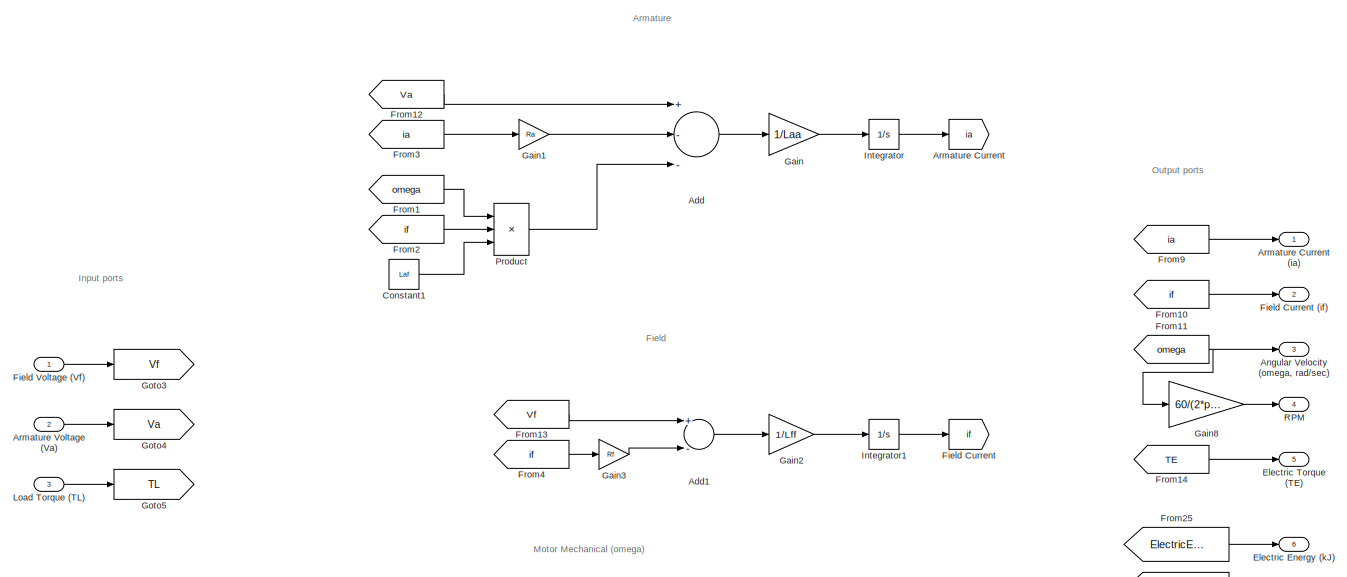
[diagram: root canvas - part 1/4, top center region]
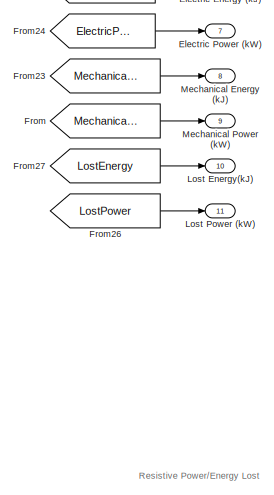
[diagram: root canvas - part 2/4, middle right region]
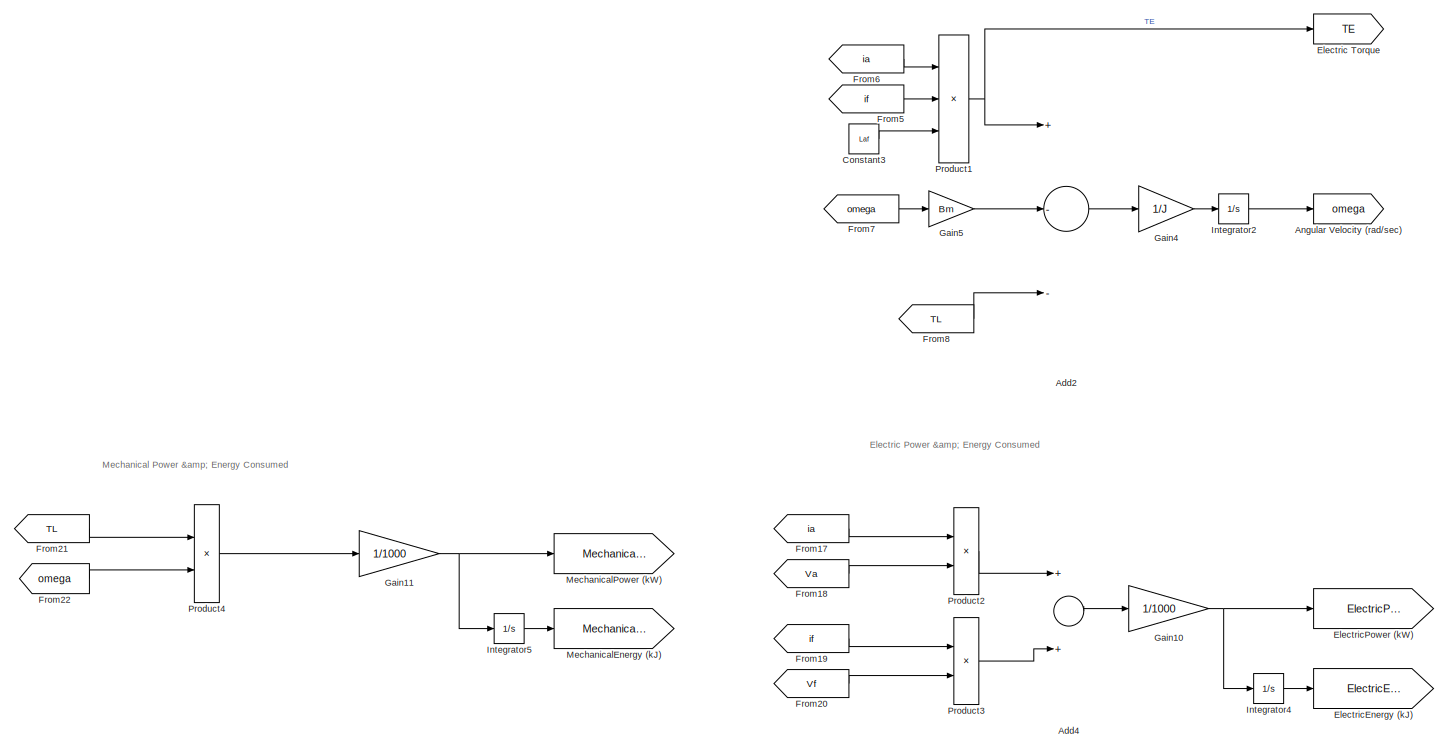
[diagram: root canvas - part 3/4, bottom left region]
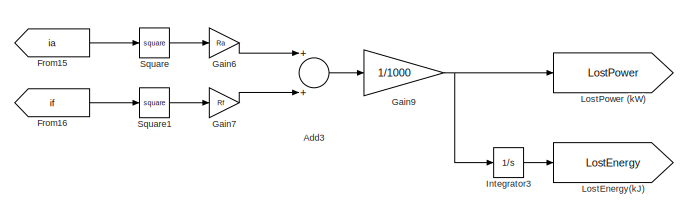
[diagram: root canvas - part 4/4, bottom right region]
MODEL slx_8e0ccdffc390
KIND model
CONFIG AbsTol = auto
CONFIG EnableMultiTasking = off
CONFIG FixedStep = auto
CONFIG InitFcn = run MotorParameter_Initialize
CONFIG MaxStep = auto
CONFIG MinStep = auto
CONFIG RelTol = 1e-3
CONFIG SampleTimeConstraint = Unconstrained
CONFIG Solver = VariableStepAuto
CONFIG SolverName = VariableStepAuto
CONFIG StartTime = 0.0
CONFIG StopTime = 10.0
BLOCK [Sum] Add
  InputSameDT = off
  Inputs = +--
  OutDataTypeStr = Inherit: Inherit via internal rule
  Ports = [3, 1]
  SaturateOnIntegerOverflow = off
BLOCK [Sum] Add1
  InputSameDT = off
  Inputs = +-
  OutDataTypeStr = Inherit: Inherit via internal rule
  Ports = [2, 1]
  SaturateOnIntegerOverflow = off
BLOCK [Sum] Add2
  InputSameDT = off
  Inputs = +--
  OutDataTypeStr = Inherit: Inherit via internal rule
  Ports = [3, 1]
  SaturateOnIntegerOverflow = off
BLOCK [Sum] Add3
  InputSameDT = off
  OutDataTypeStr = Inherit: Inherit via internal rule
  Ports = [2, 1]
  SaturateOnIntegerOverflow = off
BLOCK [Sum] Add4
  InputSameDT = off
  OutDataTypeStr = Inherit: Inherit via internal rule
  Ports = [2, 1]
  SaturateOnIntegerOverflow = off
BLOCK [Outport] Angular Velocity (omega, rad//sec)
  IconDisplay = Port number
  Port = 3
BLOCK [Goto] Angular Velocity (rad//sec)
  GotoTag = omega
BLOCK [Goto] Armature Current
  GotoTag = ia
BLOCK [Outport] Armature Current (ia)
  IconDisplay = Port number
BLOCK [Inport] Armature Voltage (Va)
  IconDisplay = Port number
  Port = 2
BLOCK [Constant] Constant1
  Value = Laf
BLOCK [Constant] Constant3
  Value = Laf
BLOCK [Outport] Electric Energy (kJ)
  IconDisplay = Port number
  Port = 6
BLOCK [Outport] Electric Power (kW)
  IconDisplay = Port number
  Port = 7
BLOCK [Goto] Electric Torque
  GotoTag = TE
BLOCK [Outport] Electric Torque (TE)
  IconDisplay = Port number
  Port = 5
BLOCK [Goto] ElectricEnergy (kJ)
  GotoTag = ElectricEnergy
BLOCK [Goto] ElectricPower (kW)
  GotoTag = ElectricPower
BLOCK [Goto] Field Current
  GotoTag = if
BLOCK [Outport] Field Current (if)
  IconDisplay = Port number
  Port = 2
BLOCK [Inport] Field Voltage (Vf)
  IconDisplay = Port number
BLOCK [From] From
  GotoTag = MechanicalPower
BLOCK [From] From1
  GotoTag = omega
BLOCK [From] From10
  GotoTag = if
BLOCK [From] From11
  GotoTag = omega
BLOCK [From] From12
  GotoTag = Va
BLOCK [From] From13
  GotoTag = Vf
BLOCK [From] From14
  GotoTag = TE
BLOCK [From] From15
  GotoTag = ia
BLOCK [From] From16
  GotoTag = if
BLOCK [From] From17
  GotoTag = ia
BLOCK [From] From18
  GotoTag = Va
BLOCK [From] From19
  GotoTag = if
BLOCK [From] From2
  GotoTag = if
BLOCK [From] From20
  GotoTag = Vf
BLOCK [From] From21
  GotoTag = TL
BLOCK [From] From22
  GotoTag = omega
BLOCK [From] From23
  GotoTag = MechanicalEnergy
BLOCK [From] From24
  GotoTag = ElectricPower
BLOCK [From] From25
  GotoTag = ElectricEnergy
BLOCK [From] From26
  GotoTag = LostPower
BLOCK [From] From27
  GotoTag = LostEnergy
BLOCK [From] From3
  GotoTag = ia
BLOCK [From] From4
  GotoTag = if
BLOCK [From] From5
  GotoTag = if
BLOCK [From] From6
  GotoTag = ia
BLOCK [From] From7
  GotoTag = omega
BLOCK [From] From8
  GotoTag = TL
BLOCK [From] From9
  GotoTag = ia
BLOCK [Gain] Gain
  Gain = 1/Laa
  OutDataTypeStr = Inherit: Inherit via internal rule
  ParamDataTypeStr = Inherit: Inherit via internal rule
  SaturateOnIntegerOverflow = off
BLOCK [Gain] Gain1
  Gain = Ra
  OutDataTypeStr = Inherit: Inherit via internal rule
  ParamDataTypeStr = Inherit: Inherit via internal rule
  SaturateOnIntegerOverflow = off
BLOCK [Gain] Gain10
  Gain = 1/1000
  OutDataTypeStr = Inherit: Inherit via internal rule
  ParamDataTypeStr = Inherit: Inherit via internal rule
  SaturateOnIntegerOverflow = off
BLOCK [Gain] Gain11
  Gain = 1/1000
  OutDataTypeStr = Inherit: Inherit via internal rule
  ParamDataTypeStr = Inherit: Inherit via internal rule
  SaturateOnIntegerOverflow = off
BLOCK [Gain] Gain2
  Gain = 1/Lff
  OutDataTypeStr = Inherit: Inherit via internal rule
  ParamDataTypeStr = Inherit: Inherit via internal rule
  SaturateOnIntegerOverflow = off
BLOCK [Gain] Gain3
  Gain = Rf
  OutDataTypeStr = Inherit: Inherit via internal rule
  ParamDataTypeStr = Inherit: Inherit via internal rule
  SaturateOnIntegerOverflow = off
BLOCK [Gain] Gain4
  Gain = 1/J
  OutDataTypeStr = Inherit: Inherit via internal rule
  ParamDataTypeStr = Inherit: Inherit via internal rule
  SaturateOnIntegerOverflow = off
BLOCK [Gain] Gain5
  Gain = Bm
  OutDataTypeStr = Inherit: Inherit via internal rule
  ParamDataTypeStr = Inherit: Inherit via internal rule
  SaturateOnIntegerOverflow = off
BLOCK [Gain] Gain6
  Gain = Ra
  OutDataTypeStr = Inherit: Inherit via internal rule
  ParamDataTypeStr = Inherit: Inherit via internal rule
  SaturateOnIntegerOverflow = off
BLOCK [Gain] Gain7
  Gain = Rf
  OutDataTypeStr = Inherit: Inherit via internal rule
  ParamDataTypeStr = Inherit: Inherit via internal rule
  SaturateOnIntegerOverflow = off
BLOCK [Gain] Gain8
  Gain = 60/(2*pi)
  OutDataTypeStr = Inherit: Inherit via internal rule
  ParamDataTypeStr = Inherit: Inherit via internal rule
  SaturateOnIntegerOverflow = off
BLOCK [Gain] Gain9
  Gain = 1/1000
  OutDataTypeStr = Inherit: Inherit via internal rule
  ParamDataTypeStr = Inherit: Inherit via internal rule
  SaturateOnIntegerOverflow = off
BLOCK [Goto] Goto3
  GotoTag = Vf
BLOCK [Goto] Goto4
  GotoTag = Va
BLOCK [Goto] Goto5
  GotoTag = TL
BLOCK [Integrator] Integrator
  Ports = [1, 1]
BLOCK [Integrator] Integrator1
  Ports = [1, 1]
BLOCK [Integrator] Integrator2
  Ports = [1, 1]
BLOCK [Integrator] Integrator3
  Ports = [1, 1]
BLOCK [Integrator] Integrator4
  Ports = [1, 1]
BLOCK [Integrator] Integrator5
  Ports = [1, 1]
BLOCK [Inport] Load Torque (TL)
  IconDisplay = Port number
  Port = 3
BLOCK [Outport] Lost Energy(kJ)
  IconDisplay = Port number
  Port = 10
BLOCK [Outport] Lost Power (kW)
  IconDisplay = Port number
  Port = 11
BLOCK [Goto] LostEnergy(kJ)
  GotoTag = LostEnergy
BLOCK [Goto] LostPower (kW)
  GotoTag = LostPower
BLOCK [Outport] Mechanical Energy (kJ)
  IconDisplay = Port number
  Port = 8
BLOCK [Outport] Mechanical Power (kW)
  IconDisplay = Port number
  Port = 9
BLOCK [Goto] MechanicalEnergy (kJ)
  GotoTag = MechanicalEnergy
BLOCK [Goto] MechanicalPower (kW)
  GotoTag = MechanicalPower
BLOCK [Product] Product
  InputSameDT = off
  Inputs = 3
  OutDataTypeStr = Inherit: Inherit via internal rule
  Ports = [3, 1]
  RndMeth = Floor
  SaturateOnIntegerOverflow = off
BLOCK [Product] Product1
  InputSameDT = off
  Inputs = 3
  OutDataTypeStr = Inherit: Inherit via internal rule
  Ports = [3, 1]
  RndMeth = Floor
  SaturateOnIntegerOverflow = off
BLOCK [Product] Product2
  InputSameDT = off
  OutDataTypeStr = Inherit: Inherit via internal rule
  Ports = [2, 1]
  RndMeth = Floor
  SaturateOnIntegerOverflow = off
BLOCK [Product] Product3
  InputSameDT = off
  OutDataTypeStr = Inherit: Inherit via internal rule
  Ports = [2, 1]
  RndMeth = Floor
  SaturateOnIntegerOverflow = off
BLOCK [Product] Product4
  InputSameDT = off
  OutDataTypeStr = Inherit: Inherit via internal rule
  Ports = [2, 1]
  RndMeth = Floor
  SaturateOnIntegerOverflow = off
BLOCK [Outport] RPM
  IconDisplay = Port number
  Port = 4
BLOCK [Math] Square
  Operator = square
  Ports = [1, 1]
BLOCK [Math] Square1
  Operator = square
  Ports = [1, 1]
ANNOTATION (root): Armature
ANNOTATION (root): Electric Power & Energy Consumed
ANNOTATION (root): Field
ANNOTATION (root): Input ports
ANNOTATION (root): Mechanical Power & Energy Consumed
ANNOTATION (root): Motor Mechanical (omega)
ANNOTATION (root): Output ports
ANNOTATION (root): Resistive Power/Energy Lost
LINE Add1:1 -> Gain2:1
LINE Add2:1 -> Gain4:1
LINE Add3:1 -> Gain9:1
LINE Add4:1 -> Gain10:1
LINE Add:1 -> Gain:1
LINE Armature Voltage (Va):1 -> Goto4:1
LINE Constant1:1 -> Product:3
LINE Constant3:1 -> Product1:3
LINE Field Voltage (Vf):1 -> Goto3:1
LINE From10:1 -> Field Current (if):1
NET From11:1 -> Angular Velocity (omega, rad//sec):1, Gain8:1
LINE From12:1 -> Add:1
LINE From13:1 -> Add1:1
LINE From14:1 -> Electric Torque (TE):1
LINE From15:1 -> Square:1
LINE From16:1 -> Square1:1
LINE From17:1 -> Product2:1
LINE From18:1 -> Product2:2
LINE From19:1 -> Product3:1
LINE From1:1 -> Product:1
LINE From20:1 -> Product3:2
LINE From21:1 -> Product4:1
LINE From22:1 -> Product4:2
LINE From23:1 -> Mechanical Energy (kJ):1
LINE From24:1 -> Electric Power (kW):1
LINE From25:1 -> Electric Energy (kJ):1
LINE From26:1 -> Lost Power (kW):1
LINE From27:1 -> Lost Energy(kJ):1
LINE From2:1 -> Product:2
LINE From3:1 -> Gain1:1
LINE From4:1 -> Gain3:1
LINE From5:1 -> Product1:2
LINE From6:1 -> Product1:1
LINE From7:1 -> Gain5:1
LINE From8:1 -> Add2:3
LINE From9:1 -> Armature Current (ia):1
LINE From:1 -> Mechanical Power (kW):1
NET Gain10:1 -> ElectricPower (kW):1, Integrator4:1
NET Gain11:1 -> Integrator5:1, MechanicalPower (kW):1
LINE Gain1:1 -> Add:2
LINE Gain2:1 -> Integrator1:1
LINE Gain3:1 -> Add1:2
LINE Gain4:1 -> Integrator2:1
LINE Gain5:1 -> Add2:2
LINE Gain6:1 -> Add3:1
LINE Gain7:1 -> Add3:2
LINE Gain8:1 -> RPM:1
NET Gain9:1 -> Integrator3:1, LostPower (kW):1
LINE Gain:1 -> Integrator:1
LINE Integrator1:1 -> Field Current:1
LINE Integrator2:1 -> Angular Velocity (rad//sec):1
LINE Integrator3:1 -> LostEnergy(kJ):1
LINE Integrator4:1 -> ElectricEnergy (kJ):1
LINE Integrator5:1 -> MechanicalEnergy (kJ):1
LINE Integrator:1 -> Armature Current:1
LINE Load Torque (TL):1 -> Goto5:1
NET Product1:1 -> Add2:1, Electric Torque:1
LINE Product2:1 -> Add4:1
LINE Product3:1 -> Add4:2
LINE Product4:1 -> Gain11:1
LINE Product:1 -> Add:3
LINE Square1:1 -> Gain7:1
LINE Square:1 -> Gain6:1
note: NET lines group one-source signal fan-out (src -> all destinations, sorted); 1:1 wires keep LINE
